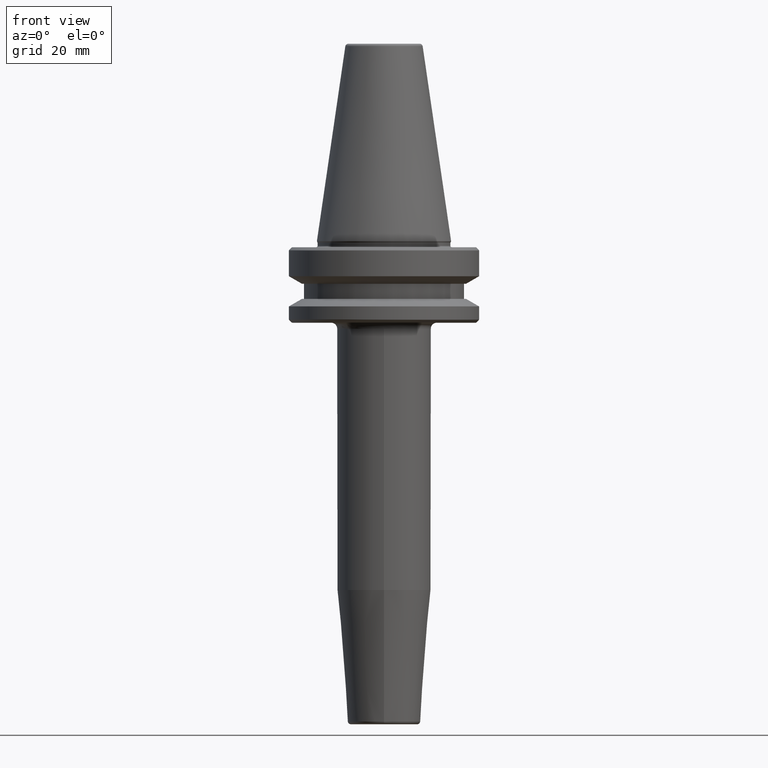
[diagram: clean part render]
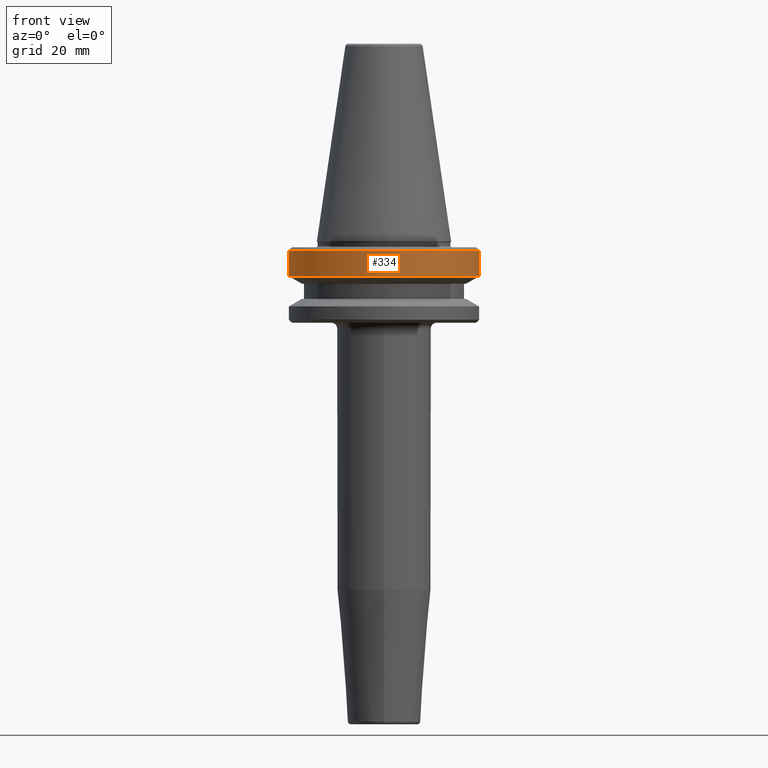
[diagram: same view with one face highlighted and labeled with its STEP entity id]
A machine part, front view. The second image highlights one B-rep face of the part: STEP entity #334.
In plain terms, the highlighted cylindrical surface (partial cylindrical patch) has radius 31.5 mm, axis along (-0, -0, 1).
Its self-contained STEP definition (entity closure, byte-faithful):
#11 = DIRECTION ( 'NONE',  ( 1.000000000000000000, 0.0000000000000000000, 0.0000000000000000000 ) ) ;
#58 = VECTOR ( 'NONE', #1015, 1000.000000000000000 ) ;
#87 = DIRECTION ( 'NONE',  ( 1.000000000000000000, 0.0000000000000000000, 0.0000000000000000000 ) ) ;
#182 = VECTOR ( 'NONE', #1115, 1000.000000000000000 ) ;
#232 = LINE ( 'NONE', #880, #182 ) ;
#262 = FACE_OUTER_BOUND ( 'NONE', #1214, .T. ) ;
#273 = AXIS2_PLACEMENT_3D ( 'NONE', #1274, #561, #87 ) ;
#283 = CYLINDRICAL_SURFACE ( 'NONE', #886, 31.50000000000000000 ) ;
#292 = EDGE_CURVE ( 'NONE', #1211, #381, #570, .T. ) ;
#293 = EDGE_CURVE ( 'NONE', #1211, #1040, #316, .T. ) ;
#316 = CIRCLE ( 'NONE', #553, 31.50000000000000000 ) ;
#334 = ADVANCED_FACE ( 'NONE', ( #262 ), #283, .T. ) ;
#352 = CARTESIAN_POINT ( 'NONE',  ( 0.0000000000000000000, 0.0000000000000000000, -11.59985799368323700 ) ) ;
#381 = VERTEX_POINT ( 'NONE', #385 ) ;
#385 = CARTESIAN_POINT ( 'NONE',  ( -31.49999999999999300, 3.857637417314161900E-015, -3.165685424949243700 ) ) ;
#388 = CARTESIAN_POINT ( 'NONE',  ( -31.50000000000000000, 3.857637417314162700E-015, 69.75694866325665100 ) ) ;
#423 = EDGE_CURVE ( 'NONE', #1040, #1099, #232, .T. ) ;
#470 = CARTESIAN_POINT ( 'NONE',  ( 31.50000000000000000, 0.0000000000000000000, -11.59985799368323700 ) ) ;
#492 = EDGE_CURVE ( 'NONE', #381, #1099, #663, .T. ) ;
#501 = CARTESIAN_POINT ( 'NONE',  ( -31.50000000000000000, 3.857637417314162700E-015, -11.59985799368323700 ) ) ;
#553 = AXIS2_PLACEMENT_3D ( 'NONE', #352, #596, #11 ) ;
#561 = DIRECTION ( 'NONE',  ( -0.0000000000000000000, -0.0000000000000000000, 1.000000000000000000 ) ) ;
#570 = LINE ( 'NONE', #388, #58 ) ;
#596 = DIRECTION ( 'NONE',  ( -0.0000000000000000000, -0.0000000000000000000, 1.000000000000000000 ) ) ;
#663 = CIRCLE ( 'NONE', #273, 31.49999999999999300 ) ;
#741 = DIRECTION ( 'NONE',  ( 1.000000000000000000, 0.0000000000000000000, 0.0000000000000000000 ) ) ;
#779 = CARTESIAN_POINT ( 'NONE',  ( 31.49999999999999300, 0.0000000000000000000, -3.165685424949243700 ) ) ;
#880 = CARTESIAN_POINT ( 'NONE',  ( 31.50000000000000000, 0.0000000000000000000, 69.75694866325665100 ) ) ;
#886 = AXIS2_PLACEMENT_3D ( 'NONE', #1130, #1091, #741 ) ;
#927 = ORIENTED_EDGE ( 'NONE', *, *, #293, .T. ) ;
#947 = ORIENTED_EDGE ( 'NONE', *, *, #492, .F. ) ;
#1015 = DIRECTION ( 'NONE',  ( -0.0000000000000000000, -0.0000000000000000000, 1.000000000000000000 ) ) ;
#1040 = VERTEX_POINT ( 'NONE', #470 ) ;
#1088 = ORIENTED_EDGE ( 'NONE', *, *, #292, .F. ) ;
#1091 = DIRECTION ( 'NONE',  ( -0.0000000000000000000, -0.0000000000000000000, 1.000000000000000000 ) ) ;
#1099 = VERTEX_POINT ( 'NONE', #779 ) ;
#1115 = DIRECTION ( 'NONE',  ( -0.0000000000000000000, -0.0000000000000000000, 1.000000000000000000 ) ) ;
#1130 = CARTESIAN_POINT ( 'NONE',  ( 0.0000000000000000000, 0.0000000000000000000, 69.75694866325665100 ) ) ;
#1211 = VERTEX_POINT ( 'NONE', #501 ) ;
#1214 = EDGE_LOOP ( 'NONE', ( #1088, #927, #1242, #947 ) ) ;
#1242 = ORIENTED_EDGE ( 'NONE', *, *, #423, .T. ) ;
#1274 = CARTESIAN_POINT ( 'NONE',  ( 0.0000000000000000000, 0.0000000000000000000, -3.165685424949243700 ) ) ;